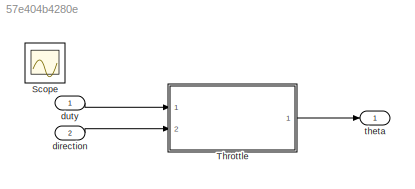
MODEL slx_57e404b4280e
KIND model
CONFIG AbsTol = auto
CONFIG EnableMultiTasking = on
CONFIG FixedStep = auto
CONFIG MaxStep = auto
CONFIG MinStep = auto
CONFIG PreLoadFcn = etc_plant_data;
CONFIG RelTol = 1e-3
CONFIG SampleTimeConstraint = Unconstrained
CONFIG Solver = ode45
CONFIG SolverName = ode45
CONFIG StartTime = 0.0
CONFIG StopTime = 20
BLOCK [Scope] Scope
  Floating = off
  IOType = viewer
  NumInputPorts = 1
  Ports = []
  ScopeSpecificationString = Simulink.scopes.TimeScopeBlockCfg('CurrentConfiguration', extmgr.ConfigurationSet(extmgr.Configuration('Core','General UI',true),extmgr.Configuration('Core','Source UI',true),extmgr.Configuration('Sources','WiredSimulink',true,'DataLoggingMaxPoints','7500','DataLoggingLimitDataPoints',true,'DataLoggingSaveFormat','Array','DataLoggingDecimation','1','DataLoggingDecimateData',true),extmgr.Configurat...<+1834ch>
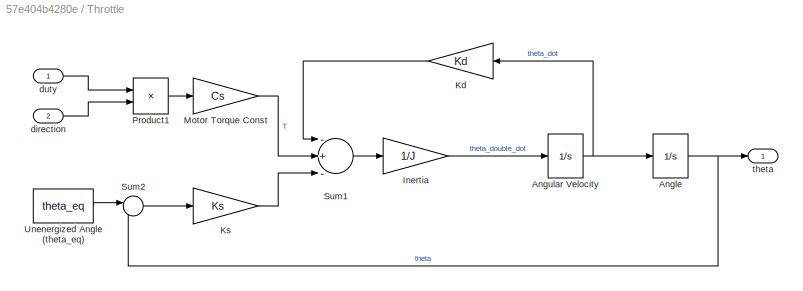
BLOCK [SubSystem] Throttle
  Ports = [2, 1]
  RequestExecContextInheritance = off
BLOCK [Integrator] Throttle/Angle
  AttributesFormatString = Initial condition: %<InitialCondition>\n%<LowerSaturationLimit> <= theta <= %<UpperSaturationLimit>
  InitialCondition = pi/6
  LimitOutput = on
  LowerSaturationLimit = 0
  Ports = [1, 1]
  UpperSaturationLimit = pi/2
BLOCK [Integrator] Throttle/Angular Velocity
  AttributesFormatString = Initial condition: %<InitialCondition>
  Ports = [1, 1]
BLOCK [Gain] Throttle/Inertia
  Gain = 1/J
BLOCK [Gain] Throttle/Kd
  Gain = Kd
BLOCK [Gain] Throttle/Ks
  Gain = Ks
BLOCK [Gain] Throttle/Motor Torque Const
  Gain = Cs
BLOCK [Product] Throttle/Product1
  InputSameDT = off
  Ports = [2, 1]
  RndMeth = Floor
BLOCK [Sum] Throttle/Sum1
  InputSameDT = off
  Inputs = -+-
  OutDataTypeStr = Inherit: Inherit via internal rule
  Ports = [3, 1]
BLOCK [Sum] Throttle/Sum2
  IconShape = round
  InputSameDT = off
  Inputs = |-+
  OutDataTypeStr = Inherit: Inherit via internal rule
  Ports = [2, 1]
BLOCK [Constant] Throttle/Unenergized Angle (theta_eq)
  Value = theta_eq
BLOCK [Inport] Throttle/direction
  IconDisplay = Port number
  Port = 2
BLOCK [Inport] Throttle/duty
  IconDisplay = Port number
BLOCK [Outport] Throttle/theta
  IconDisplay = Port number
BLOCK [Inport] direction
  IconDisplay = Port number
  Port = 2
BLOCK [Inport] duty
  IconDisplay = Port number
BLOCK [Outport] theta
  IconDisplay = Port number
NET Throttle/Angle:1 -> Throttle/Sum2:2, Throttle/theta:1
NET Throttle/Angular Velocity:1 -> Throttle/Angle:1, Throttle/Kd:1
LINE Throttle/Inertia:1 -> Throttle/Angular Velocity:1
LINE Throttle/Kd:1 -> Throttle/Sum1:1
LINE Throttle/Ks:1 -> Throttle/Sum1:3
LINE Throttle/Motor Torque Const:1 -> Throttle/Sum1:2
LINE Throttle/Product1:1 -> Throttle/Motor Torque Const:1
LINE Throttle/Sum1:1 -> Throttle/Inertia:1
LINE Throttle/Sum2:1 -> Throttle/Ks:1
LINE Throttle/Unenergized Angle (theta_eq):1 -> Throttle/Sum2:1
LINE Throttle/direction:1 -> Throttle/Product1:2
LINE Throttle/duty:1 -> Throttle/Product1:1
LINE Throttle:1 -> theta:1
LINE direction:1 -> Throttle:2
LINE duty:1 -> Throttle:1
note: NET lines group one-source signal fan-out (src -> all destinations, sorted); 1:1 wires keep LINE
